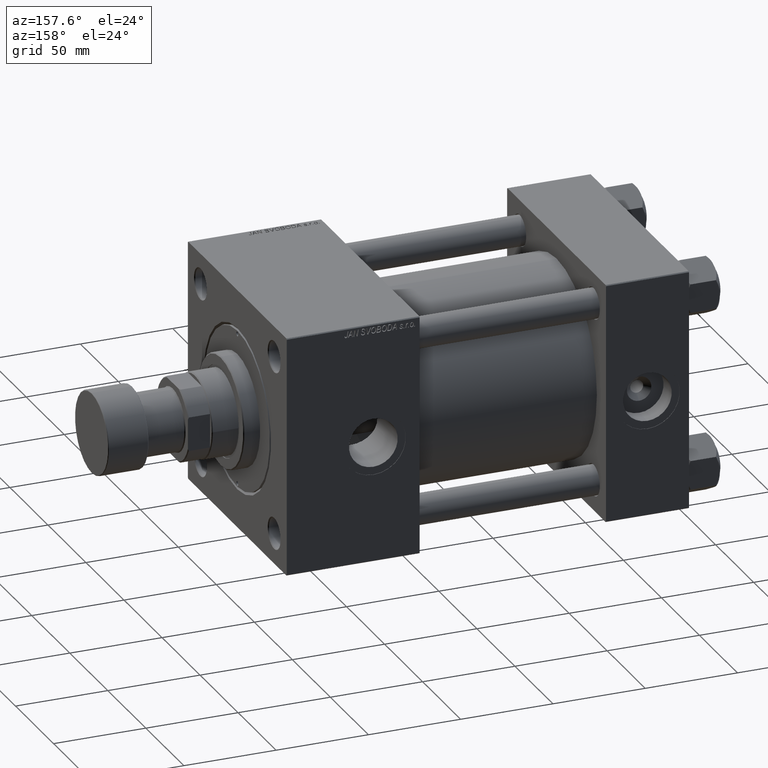
[diagram: clean part render]
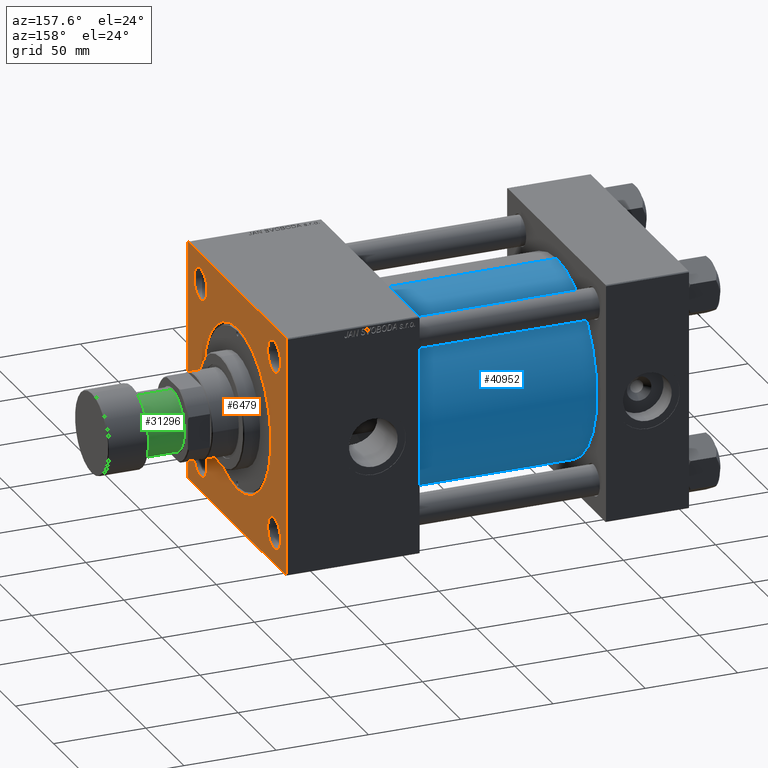
[diagram: same view with three faces highlighted in distinct colors, each labeled with its STEP entity id]
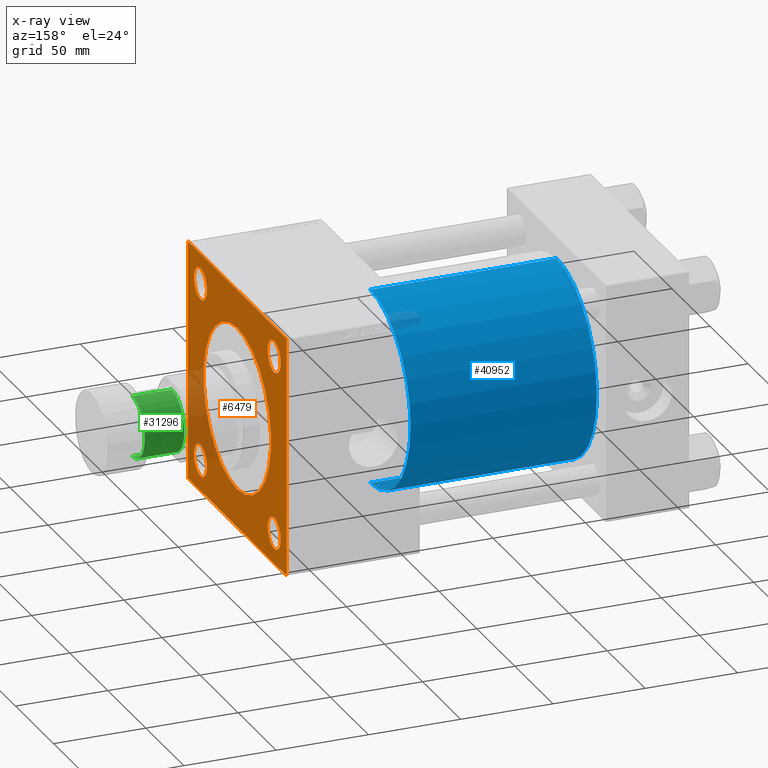
[diagram: x-ray of the same camera — body ghosted, the three highlighted faces saturated]
A machine part, auxiliary view with three faces highlighted in distinct colors.
The next image is the same camera in x-ray (body ghosted, the three faces saturated) — at least one of them is partly hidden behind the body in this view.
Their STEP definitions:

[orange] entity #6479 — the highlighted planar face has unit normal (-1, 0, 0).
#233 = CARTESIAN_POINT ( 'NONE',  ( 218.0000000000000284, 64.50000000000002842, 65.00000000000001421 ) ) ;
#270 = EDGE_LOOP ( 'NONE', ( #18991, #30692 ) ) ;
#344 = DIRECTION ( 'NONE',  ( 0.000000000000000000, 0.000000000000000000, 1.000000000000000000 ) ) ;
#661 = ORIENTED_EDGE ( 'NONE', *, *, #49151, .T. ) ;
#825 = CARTESIAN_POINT ( 'NONE',  ( 218.0000000000000284, 5.419062086227035828E-15, 44.24999999999998579 ) ) ;
#1285 = ORIENTED_EDGE ( 'NONE', *, *, #9693, .T. ) ;
#1496 = CARTESIAN_POINT ( 'NONE',  ( 218.0000000000000284, 0.000000000000000000, -44.24999999999998579 ) ) ;
#1857 = AXIS2_PLACEMENT_3D ( 'NONE', #34360, #49414, #37490 ) ;
#2056 = CARTESIAN_POINT ( 'NONE',  ( 218.0000000000000284, 65.00000000000002842, -64.49999999999995737 ) ) ;
#2225 = CARTESIAN_POINT ( 'NONE',  ( 218.0000000000000284, 48.45000000000000995, -48.45000000000001705 ) ) ;
#2680 = CARTESIAN_POINT ( 'NONE',  ( 218.0000000000000284, -64.99999999999998579, 64.50000000000002842 ) ) ;
#2776 = EDGE_CURVE ( 'NONE', #14370, #40080, #45542, .T. ) ;
#2778 = FACE_BOUND ( 'NONE', #29535, .T. ) ;
#2948 = CARTESIAN_POINT ( 'NONE',  ( 218.0000000000000284, -64.49999999999997158, -65.00000000000001421 ) ) ;
#3467 = DIRECTION ( 'NONE',  ( 0.000000000000000000, -1.000000000000000000, -2.135044278125300850E-16 ) ) ;
#3723 = CARTESIAN_POINT ( 'NONE',  ( 218.0000000000000284, -48.45000000000001705, -48.45000000000001705 ) ) ;
#3925 = VERTEX_POINT ( 'NONE', #32778 ) ;
#4654 = AXIS2_PLACEMENT_3D ( 'NONE', #44978, #44457, #32529 ) ;
#5140 = CIRCLE ( 'NONE', #35742, 8.500000000000063949 ) ;
#5418 = ORIENTED_EDGE ( 'NONE', *, *, #2776, .T. ) ;
#5972 = CIRCLE ( 'NONE', #49828, 8.499999999999980460 ) ;
#6244 = DIRECTION ( 'NONE',  ( -1.000000000000000000, 0.000000000000000000, -0.000000000000000000 ) ) ;
#6479 = ADVANCED_FACE ( 'NONE', ( #22454, #22207, #38257, #14449, #2778, #18587 ), #21685, .F. ) ;
#7644 = DIRECTION ( 'NONE',  ( 0.000000000000000000, 0.000000000000000000, 1.000000000000000000 ) ) ;
#7949 = DIRECTION ( 'NONE',  ( 0.000000000000000000, 0.000000000000000000, 1.000000000000000000 ) ) ;
#8045 = CIRCLE ( 'NONE', #40295, 8.500000000000063949 ) ;
#8187 = CARTESIAN_POINT ( 'NONE',  ( 218.0000000000000284, 65.00000000000002842, 64.50000000000001421 ) ) ;
#9155 = EDGE_CURVE ( 'NONE', #33775, #48442, #23466, .T. ) ;
#9351 = CARTESIAN_POINT ( 'NONE',  ( 218.0000000000000284, 48.45000000000000995, 48.45000000000001705 ) ) ;
#9693 = EDGE_CURVE ( 'NONE', #37869, #40954, #46602, .T. ) ;
#9885 = LINE ( 'NONE', #14538, #50770 ) ;
#9918 = VERTEX_POINT ( 'NONE', #1496 ) ;
#10493 = CARTESIAN_POINT ( 'NONE',  ( 218.0000000000000284, -64.49999999999997158, -65.00000000000001421 ) ) ;
#10742 = DIRECTION ( 'NONE',  ( 0.000000000000000000, 0.7071067811865279218, -0.7071067811865671127 ) ) ;
#10909 = VERTEX_POINT ( 'NONE', #825 ) ;
#11032 = ORIENTED_EDGE ( 'NONE', *, *, #51080, .T. ) ;
#11137 = CARTESIAN_POINT ( 'NONE',  ( 218.0000000000000284, 0.000000000000000000, 0.000000000000000000 ) ) ;
#11688 = DIRECTION ( 'NONE',  ( -1.000000000000000000, 0.000000000000000000, -0.000000000000000000 ) ) ;
#11907 = CARTESIAN_POINT ( 'NONE',  ( 218.0000000000000284, 48.45000000000000995, -39.94999999999995310 ) ) ;
#12160 = EDGE_LOOP ( 'NONE', ( #21897, #35941 ) ) ;
#12661 = ORIENTED_EDGE ( 'NONE', *, *, #19490, .T. ) ;
#13033 = CARTESIAN_POINT ( 'NONE',  ( 218.0000000000000284, 65.00000000000002842, 65.00000000000001421 ) ) ;
#13301 = ORIENTED_EDGE ( 'NONE', *, *, #22291, .T. ) ;
#13454 = EDGE_CURVE ( 'NONE', #40954, #48575, #9885, .T. ) ;
#13719 = DIRECTION ( 'NONE',  ( -0.000000000000000000, 0.7071067811865474617, 0.7071067811865474617 ) ) ;
#13872 = CARTESIAN_POINT ( 'NONE',  ( 218.0000000000000284, 64.50000000000000000, -64.99999999999998579 ) ) ;
#14370 = VERTEX_POINT ( 'NONE', #2680 ) ;
#14382 = VERTEX_POINT ( 'NONE', #30381 ) ;
#14449 = FACE_BOUND ( 'NONE', #45635, .T. ) ;
#14538 = CARTESIAN_POINT ( 'NONE',  ( 218.0000000000000284, 65.00000000000002842, 65.00000000000001421 ) ) ;
#15346 = AXIS2_PLACEMENT_3D ( 'NONE', #40407, #29242, #44286 ) ;
#15592 = CARTESIAN_POINT ( 'NONE',  ( 218.0000000000000284, 48.45000000000000995, -48.45000000000001705 ) ) ;
#15673 = CARTESIAN_POINT ( 'NONE',  ( 218.0000000000000284, -64.99999999999998579, 64.50000000000002842 ) ) ;
#15997 = DIRECTION ( 'NONE',  ( -1.000000000000000000, 0.000000000000000000, -0.000000000000000000 ) ) ;
#16185 = CIRCLE ( 'NONE', #15346, 8.499999999999980460 ) ;
#16200 = CARTESIAN_POINT ( 'NONE',  ( 218.0000000000000284, 48.45000000000000995, 48.45000000000001705 ) ) ;
#16268 = AXIS2_PLACEMENT_3D ( 'NONE', #11137, #22297, #34700 ) ;
#16929 = EDGE_CURVE ( 'NONE', #31773, #16952, #16185, .T. ) ;
#16952 = VERTEX_POINT ( 'NONE', #33140 ) ;
#17448 = LINE ( 'NONE', #13033, #28670 ) ;
#17483 = ORIENTED_EDGE ( 'NONE', *, *, #50145, .T. ) ;
#17724 = DIRECTION ( 'NONE',  ( 0.000000000000000000, 0.000000000000000000, 1.000000000000000000 ) ) ;
#18587 = FACE_OUTER_BOUND ( 'NONE', #24058, .T. ) ;
#18761 = AXIS2_PLACEMENT_3D ( 'NONE', #15592, #11688, #43288 ) ;
#18991 = ORIENTED_EDGE ( 'NONE', *, *, #16929, .T. ) ;
#19319 = DIRECTION ( 'NONE',  ( -1.000000000000000000, 0.000000000000000000, -0.000000000000000000 ) ) ;
#19490 = EDGE_CURVE ( 'NONE', #10909, #9918, #31106, .T. ) ;
#19521 = DIRECTION ( 'NONE',  ( -1.000000000000000000, 0.000000000000000000, -0.000000000000000000 ) ) ;
#19664 = VECTOR ( 'NONE', #13719, 1000.000000000000114 ) ;
#20155 = CARTESIAN_POINT ( 'NONE',  ( 218.0000000000000284, 48.45000000000000995, 56.95000000000007390 ) ) ;
#20233 = EDGE_LOOP ( 'NONE', ( #44663, #17483 ) ) ;
#21376 = CARTESIAN_POINT ( 'NONE',  ( 218.0000000000000284, -48.45000000000001705, -56.95000000000007390 ) ) ;
#21392 = DIRECTION ( 'NONE',  ( -1.000000000000000000, 0.000000000000000000, -0.000000000000000000 ) ) ;
#21685 = PLANE ( 'NONE',  #1857 ) ;
#21897 = ORIENTED_EDGE ( 'NONE', *, *, #34729, .T. ) ;
#21952 = DIRECTION ( 'NONE',  ( 0.000000000000000000, 0.000000000000000000, -1.000000000000000000 ) ) ;
#22140 = LINE ( 'NONE', #10493, #49511 ) ;
#22207 = FACE_BOUND ( 'NONE', #270, .T. ) ;
#22291 = EDGE_CURVE ( 'NONE', #28092, #43150, #41170, .T. ) ;
#22297 = DIRECTION ( 'NONE',  ( -1.000000000000000000, 0.000000000000000000, -0.000000000000000000 ) ) ;
#22454 = FACE_BOUND ( 'NONE', #20233, .T. ) ;
#22852 = CIRCLE ( 'NONE', #26985, 8.500000000000063949 ) ;
#23029 = ORIENTED_EDGE ( 'NONE', *, *, #13454, .T. ) ;
#23153 = LINE ( 'NONE', #38950, #51029 ) ;
#23466 = CIRCLE ( 'NONE', #39182, 8.500000000000063949 ) ;
#23793 = VECTOR ( 'NONE', #31450, 999.9999999999998863 ) ;
#24058 = EDGE_LOOP ( 'NONE', ( #5418, #32716, #50361, #13301, #50704, #1285, #23029, #11032 ) ) ;
#25703 = DIRECTION ( 'NONE',  ( 0.000000000000000000, 0.000000000000000000, -1.000000000000000000 ) ) ;
#26985 = AXIS2_PLACEMENT_3D ( 'NONE', #2225, #21392, #29666 ) ;
#27388 = VERTEX_POINT ( 'NONE', #2948 ) ;
#28092 = VERTEX_POINT ( 'NONE', #13872 ) ;
#28229 = EDGE_CURVE ( 'NONE', #40080, #27388, #22140, .T. ) ;
#28410 = VECTOR ( 'NONE', #34425, 1000.000000000000114 ) ;
#28670 = VECTOR ( 'NONE', #25703, 1000.000000000000000 ) ;
#29242 = DIRECTION ( 'NONE',  ( -1.000000000000000000, 0.000000000000000000, -0.000000000000000000 ) ) ;
#29535 = EDGE_LOOP ( 'NONE', ( #42046, #12661 ) ) ;
#29607 = DIRECTION ( 'NONE',  ( -1.000000000000000000, 0.000000000000000000, -0.000000000000000000 ) ) ;
#29666 = DIRECTION ( 'NONE',  ( 0.000000000000000000, 0.000000000000000000, 1.000000000000000000 ) ) ;
#29739 = VERTEX_POINT ( 'NONE', #11907 ) ;
#30066 = EDGE_CURVE ( 'NONE', #16952, #31773, #5972, .T. ) ;
#30381 = CARTESIAN_POINT ( 'NONE',  ( 218.0000000000000284, -48.45000000000001705, -39.94999999999995310 ) ) ;
#30671 = CARTESIAN_POINT ( 'NONE',  ( 218.0000000000000284, -64.50000000000002842, 65.00000000000000000 ) ) ;
#30692 = ORIENTED_EDGE ( 'NONE', *, *, #30066, .T. ) ;
#31106 = CIRCLE ( 'NONE', #16268, 44.24999999999998579 ) ;
#31450 = DIRECTION ( 'NONE',  ( -0.000000000000000000, -0.7071067811865376918, -0.7071067811865574537 ) ) ;
#31773 = VERTEX_POINT ( 'NONE', #35677 ) ;
#31930 = DIRECTION ( 'NONE',  ( 0.000000000000000000, 0.000000000000000000, 1.000000000000000000 ) ) ;
#32529 = DIRECTION ( 'NONE',  ( 0.000000000000000000, 0.000000000000000000, 1.000000000000000000 ) ) ;
#32716 = ORIENTED_EDGE ( 'NONE', *, *, #28229, .T. ) ;
#32778 = CARTESIAN_POINT ( 'NONE',  ( 218.0000000000000284, 48.45000000000000995, -56.95000000000007390 ) ) ;
#33140 = CARTESIAN_POINT ( 'NONE',  ( 218.0000000000000284, -48.44999999999998153, 56.94999999999996732 ) ) ;
#33775 = VERTEX_POINT ( 'NONE', #43081 ) ;
#34360 = CARTESIAN_POINT ( 'NONE',  ( 218.0000000000000284, 0.000000000000000000, 0.000000000000000000 ) ) ;
#34425 = DIRECTION ( 'NONE',  ( 0.000000000000000000, -0.7071067811865474617, 0.7071067811865474617 ) ) ;
#34458 = VERTEX_POINT ( 'NONE', #21376 ) ;
#34700 = DIRECTION ( 'NONE',  ( 0.000000000000000000, 0.000000000000000000, 1.000000000000000000 ) ) ;
#34729 = EDGE_CURVE ( 'NONE', #34458, #14382, #5140, .T. ) ;
#35632 = CARTESIAN_POINT ( 'NONE',  ( 218.0000000000000284, 65.00000000000002842, -64.49999999999995737 ) ) ;
#35677 = CARTESIAN_POINT ( 'NONE',  ( 218.0000000000000284, -48.44999999999998153, 39.95000000000000284 ) ) ;
#35742 = AXIS2_PLACEMENT_3D ( 'NONE', #3723, #19521, #31930 ) ;
#35941 = ORIENTED_EDGE ( 'NONE', *, *, #44869, .T. ) ;
#37325 = DIRECTION ( 'NONE',  ( 0.000000000000000000, -1.000000000000000000, -1.067522139062650425E-16 ) ) ;
#37386 = CARTESIAN_POINT ( 'NONE',  ( 218.0000000000000284, 0.000000000000000000, 0.000000000000000000 ) ) ;
#37490 = DIRECTION ( 'NONE',  ( -0.000000000000000000, 0.000000000000000000, 1.000000000000000000 ) ) ;
#37869 = VERTEX_POINT ( 'NONE', #8187 ) ;
#38257 = FACE_BOUND ( 'NONE', #12160, .T. ) ;
#38771 = CARTESIAN_POINT ( 'NONE',  ( 218.0000000000000284, -64.99999999999998579, 65.00000000000000000 ) ) ;
#38950 = CARTESIAN_POINT ( 'NONE',  ( 218.0000000000000284, 65.00000000000002842, -64.99999999999998579 ) ) ;
#39182 = AXIS2_PLACEMENT_3D ( 'NONE', #16200, #19319, #7644 ) ;
#39561 = CARTESIAN_POINT ( 'NONE',  ( 218.0000000000000284, -48.44999999999998153, 48.44999999999998863 ) ) ;
#40080 = VERTEX_POINT ( 'NONE', #47894 ) ;
#40295 = AXIS2_PLACEMENT_3D ( 'NONE', #9351, #6244, #344 ) ;
#40407 = CARTESIAN_POINT ( 'NONE',  ( 218.0000000000000284, -48.44999999999998153, 48.44999999999998863 ) ) ;
#40954 = VERTEX_POINT ( 'NONE', #233 ) ;
#41170 = LINE ( 'NONE', #2056, #19664 ) ;
#41949 = CIRCLE ( 'NONE', #18761, 8.500000000000063949 ) ;
#42046 = ORIENTED_EDGE ( 'NONE', *, *, #46444, .T. ) ;
#43081 = CARTESIAN_POINT ( 'NONE',  ( 218.0000000000000284, 48.45000000000000995, 39.94999999999995310 ) ) ;
#43150 = VERTEX_POINT ( 'NONE', #35632 ) ;
#43288 = DIRECTION ( 'NONE',  ( 0.000000000000000000, 0.000000000000000000, 1.000000000000000000 ) ) ;
#43453 = ORIENTED_EDGE ( 'NONE', *, *, #45297, .T. ) ;
#44286 = DIRECTION ( 'NONE',  ( 0.000000000000000000, 0.000000000000000000, 1.000000000000000000 ) ) ;
#44457 = DIRECTION ( 'NONE',  ( -1.000000000000000000, 0.000000000000000000, -0.000000000000000000 ) ) ;
#44663 = ORIENTED_EDGE ( 'NONE', *, *, #9155, .T. ) ;
#44869 = EDGE_CURVE ( 'NONE', #14382, #34458, #49350, .T. ) ;
#44978 = CARTESIAN_POINT ( 'NONE',  ( 218.0000000000000284, -48.45000000000001705, -48.45000000000001705 ) ) ;
#45297 = EDGE_CURVE ( 'NONE', #3925, #29739, #22852, .T. ) ;
#45542 = LINE ( 'NONE', #38771, #50557 ) ;
#45635 = EDGE_LOOP ( 'NONE', ( #43453, #661 ) ) ;
#46444 = EDGE_CURVE ( 'NONE', #9918, #10909, #47739, .T. ) ;
#46602 = LINE ( 'NONE', #46857, #28410 ) ;
#46857 = CARTESIAN_POINT ( 'NONE',  ( 218.0000000000000284, 64.50000000000002842, 65.00000000000001421 ) ) ;
#47739 = CIRCLE ( 'NONE', #49383, 44.24999999999998579 ) ;
#47894 = CARTESIAN_POINT ( 'NONE',  ( 218.0000000000000284, -64.99999999999998579, -64.49999999999997158 ) ) ;
#48442 = VERTEX_POINT ( 'NONE', #20155 ) ;
#48575 = VERTEX_POINT ( 'NONE', #30671 ) ;
#48680 = EDGE_CURVE ( 'NONE', #28092, #27388, #23153, .T. ) ;
#48794 = EDGE_CURVE ( 'NONE', #37869, #43150, #17448, .T. ) ;
#49151 = EDGE_CURVE ( 'NONE', #29739, #3925, #41949, .T. ) ;
#49350 = CIRCLE ( 'NONE', #4654, 8.500000000000063949 ) ;
#49383 = AXIS2_PLACEMENT_3D ( 'NONE', #37386, #29607, #17724 ) ;
#49414 = DIRECTION ( 'NONE',  ( -1.000000000000000000, 0.000000000000000000, -0.000000000000000000 ) ) ;
#49511 = VECTOR ( 'NONE', #10742, 1000.000000000000000 ) ;
#49828 = AXIS2_PLACEMENT_3D ( 'NONE', #39561, #15997, #7949 ) ;
#50145 = EDGE_CURVE ( 'NONE', #48442, #33775, #8045, .T. ) ;
#50361 = ORIENTED_EDGE ( 'NONE', *, *, #48680, .F. ) ;
#50557 = VECTOR ( 'NONE', #21952, 1000.000000000000000 ) ;
#50704 = ORIENTED_EDGE ( 'NONE', *, *, #48794, .F. ) ;
#50770 = VECTOR ( 'NONE', #37325, 1000.000000000000000 ) ;
#51029 = VECTOR ( 'NONE', #3467, 1000.000000000000000 ) ;
#51080 = EDGE_CURVE ( 'NONE', #48575, #14370, #51155, .T. ) ;
#51155 = LINE ( 'NONE', #15673, #23793 ) ;

[blue] entity #40952 — the highlighted cylindrical surface (partial cylindrical patch) has radius 53 mm, axis along (-1, -0, -0).
#436 = DIRECTION ( 'NONE',  ( -1.000000000000000000, -0.000000000000000000, -0.000000000000000000 ) ) ;
#489 = CARTESIAN_POINT ( 'NONE',  ( 146.0000000000000284, -2.602085213965210642E-15, 0.000000000000000000 ) ) ;
#752 = CYLINDRICAL_SURFACE ( 'NONE', #34317, 53.00000000000000711 ) ;
#6618 = DIRECTION ( 'NONE',  ( 0.000000000000000000, 0.000000000000000000, -1.000000000000000000 ) ) ;
#7484 = CARTESIAN_POINT ( 'NONE',  ( 146.0000000000000284, -2.602085213965210642E-15, 53.00000000000000711 ) ) ;
#8479 = CARTESIAN_POINT ( 'NONE',  ( 146.0000000000000284, 3.888542821515762466E-15, -53.00000000000000711 ) ) ;
#10815 = CARTESIAN_POINT ( 'NONE',  ( 45.00000000000000000, -2.602085213965210642E-15, 0.000000000000000000 ) ) ;
#13982 = EDGE_LOOP ( 'NONE', ( #25034, #48530, #18143, #31276 ) ) ;
#15782 = DIRECTION ( 'NONE',  ( -1.000000000000000000, -0.000000000000000000, -0.000000000000000000 ) ) ;
#16227 = CIRCLE ( 'NONE', #22840, 53.00000000000000711 ) ;
#16311 = DIRECTION ( 'NONE',  ( 0.000000000000000000, 0.000000000000000000, 1.000000000000000000 ) ) ;
#18143 = ORIENTED_EDGE ( 'NONE', *, *, #18937, .T. ) ;
#18340 = CARTESIAN_POINT ( 'NONE',  ( 146.0000000000000284, -2.602085213965210642E-15, 53.00000000000000711 ) ) ;
#18550 = EDGE_CURVE ( 'NONE', #31708, #29034, #16227, .T. ) ;
#18748 = CIRCLE ( 'NONE', #46040, 53.00000000000000711 ) ;
#18937 = EDGE_CURVE ( 'NONE', #40980, #22376, #18748, .T. ) ;
#22376 = VERTEX_POINT ( 'NONE', #24249 ) ;
#22840 = AXIS2_PLACEMENT_3D ( 'NONE', #26284, #42101, #6618 ) ;
#23502 = CARTESIAN_POINT ( 'NONE',  ( 146.0000000000000284, 3.888542821515762466E-15, -53.00000000000000711 ) ) ;
#24166 = EDGE_CURVE ( 'NONE', #31708, #40980, #48099, .T. ) ;
#24249 = CARTESIAN_POINT ( 'NONE',  ( 45.00000000000000000, -2.602085213965210642E-15, 53.00000000000000711 ) ) ;
#25034 = ORIENTED_EDGE ( 'NONE', *, *, #18550, .F. ) ;
#25831 = DIRECTION ( 'NONE',  ( 0.000000000000000000, 0.000000000000000000, 1.000000000000000000 ) ) ;
#26284 = CARTESIAN_POINT ( 'NONE',  ( 146.0000000000000284, -2.602085213965210642E-15, 0.000000000000000000 ) ) ;
#26598 = DIRECTION ( 'NONE',  ( 1.000000000000000000, -0.000000000000000000, 0.000000000000000000 ) ) ;
#29034 = VERTEX_POINT ( 'NONE', #18340 ) ;
#29220 = CARTESIAN_POINT ( 'NONE',  ( 45.00000000000000000, 3.888542821515762466E-15, -53.00000000000000711 ) ) ;
#31276 = ORIENTED_EDGE ( 'NONE', *, *, #48488, .F. ) ;
#31708 = VERTEX_POINT ( 'NONE', #8479 ) ;
#34317 = AXIS2_PLACEMENT_3D ( 'NONE', #489, #35714, #16311 ) ;
#35714 = DIRECTION ( 'NONE',  ( -1.000000000000000000, -0.000000000000000000, -0.000000000000000000 ) ) ;
#38834 = LINE ( 'NONE', #7484, #42722 ) ;
#39865 = FACE_OUTER_BOUND ( 'NONE', #13982, .T. ) ;
#40952 = ADVANCED_FACE ( 'NONE', ( #39865 ), #752, .T. ) ;
#40980 = VERTEX_POINT ( 'NONE', #29220 ) ;
#42101 = DIRECTION ( 'NONE',  ( 1.000000000000000000, 0.000000000000000000, 0.000000000000000000 ) ) ;
#42722 = VECTOR ( 'NONE', #15782, 1000.000000000000000 ) ;
#46040 = AXIS2_PLACEMENT_3D ( 'NONE', #10815, #26598, #25831 ) ;
#48099 = LINE ( 'NONE', #23502, #49515 ) ;
#48488 = EDGE_CURVE ( 'NONE', #29034, #22376, #38834, .T. ) ;
#48530 = ORIENTED_EDGE ( 'NONE', *, *, #24166, .T. ) ;
#49515 = VECTOR ( 'NONE', #436, 1000.000000000000000 ) ;

[green] entity #31296 — the highlighted cylindrical surface (edge-blend (fillet) strip) has radius 16.5 mm, axis along (1, 0, 0).
#614 = CARTESIAN_POINT ( 'NONE',  ( -16.50000000000000000, 2.020667218593133100E-15, -22.00000000000000000 ) ) ;
#2683 = AXIS2_PLACEMENT_3D ( 'NONE', #17671, #45890, #49522 ) ;
#3652 = EDGE_CURVE ( 'NONE', #16680, #13665, #50202, .T. ) ;
#5799 = DIRECTION ( 'NONE',  ( -1.000000000000000000, 0.000000000000000000, 0.000000000000000000 ) ) ;
#11325 = CARTESIAN_POINT ( 'NONE',  ( 16.50000000000000000, 0.000000000000000000, -43.50000000000000000 ) ) ;
#11797 = AXIS2_PLACEMENT_3D ( 'NONE', #17744, #21092, #25489 ) ;
#11894 = ORIENTED_EDGE ( 'NONE', *, *, #49025, .T. ) ;
#12640 = ORIENTED_EDGE ( 'NONE', *, *, #39716, .F. ) ;
#13665 = VERTEX_POINT ( 'NONE', #34706 ) ;
#13814 = VECTOR ( 'NONE', #40168, 1000.000000000000000 ) ;
#14468 = DIRECTION ( 'NONE',  ( -0.000000000000000000, -0.000000000000000000, 1.000000000000000000 ) ) ;
#15304 = CARTESIAN_POINT ( 'NONE',  ( -16.50000000000000000, 2.020667218593133100E-15, -43.50000000000000000 ) ) ;
#16680 = VERTEX_POINT ( 'NONE', #22822 ) ;
#17671 = CARTESIAN_POINT ( 'NONE',  ( 0.000000000000000000, 0.000000000000000000, -22.00000000000000000 ) ) ;
#17744 = CARTESIAN_POINT ( 'NONE',  ( 0.000000000000000000, 0.000000000000000000, -43.50000000000000000 ) ) ;
#21092 = DIRECTION ( 'NONE',  ( -0.000000000000000000, -0.000000000000000000, 1.000000000000000000 ) ) ;
#22822 = CARTESIAN_POINT ( 'NONE',  ( 16.50000000000000000, 0.000000000000000000, -43.50000000000000000 ) ) ;
#23156 = ORIENTED_EDGE ( 'NONE', *, *, #30479, .T. ) ;
#24962 = FACE_OUTER_BOUND ( 'NONE', #43774, .T. ) ;
#25489 = DIRECTION ( 'NONE',  ( 1.000000000000000000, 0.000000000000000000, 0.000000000000000000 ) ) ;
#26387 = ORIENTED_EDGE ( 'NONE', *, *, #3652, .F. ) ;
#28217 = VECTOR ( 'NONE', #14468, 1000.000000000000000 ) ;
#30479 = EDGE_CURVE ( 'NONE', #39669, #13665, #35707, .T. ) ;
#30542 = VERTEX_POINT ( 'NONE', #15304 ) ;
#31296 = ADVANCED_FACE ( 'NONE', ( #24962 ), #40779, .T. ) ;
#34278 = AXIS2_PLACEMENT_3D ( 'NONE', #49321, #49824, #5799 ) ;
#34706 = CARTESIAN_POINT ( 'NONE',  ( 16.50000000000000000, 0.000000000000000000, -22.00000000000000000 ) ) ;
#35707 = CIRCLE ( 'NONE', #2683, 16.50000000000000000 ) ;
#39669 = VERTEX_POINT ( 'NONE', #614 ) ;
#39716 = EDGE_CURVE ( 'NONE', #30542, #16680, #50017, .T. ) ;
#40168 = DIRECTION ( 'NONE',  ( -0.000000000000000000, -0.000000000000000000, 1.000000000000000000 ) ) ;
#40779 = CYLINDRICAL_SURFACE ( 'NONE', #11797, 16.50000000000000000 ) ;
#43037 = CARTESIAN_POINT ( 'NONE',  ( -16.50000000000000000, 2.020667218593133100E-15, -43.50000000000000000 ) ) ;
#43774 = EDGE_LOOP ( 'NONE', ( #12640, #11894, #23156, #26387 ) ) ;
#45890 = DIRECTION ( 'NONE',  ( 0.000000000000000000, 0.000000000000000000, -1.000000000000000000 ) ) ;
#47180 = LINE ( 'NONE', #43037, #13814 ) ;
#49025 = EDGE_CURVE ( 'NONE', #30542, #39669, #47180, .T. ) ;
#49321 = CARTESIAN_POINT ( 'NONE',  ( 0.000000000000000000, 0.000000000000000000, -43.50000000000000000 ) ) ;
#49522 = DIRECTION ( 'NONE',  ( -1.000000000000000000, 0.000000000000000000, 0.000000000000000000 ) ) ;
#49824 = DIRECTION ( 'NONE',  ( 0.000000000000000000, 0.000000000000000000, -1.000000000000000000 ) ) ;
#50017 = CIRCLE ( 'NONE', #34278, 16.50000000000000000 ) ;
#50202 = LINE ( 'NONE', #11325, #28217 ) ;